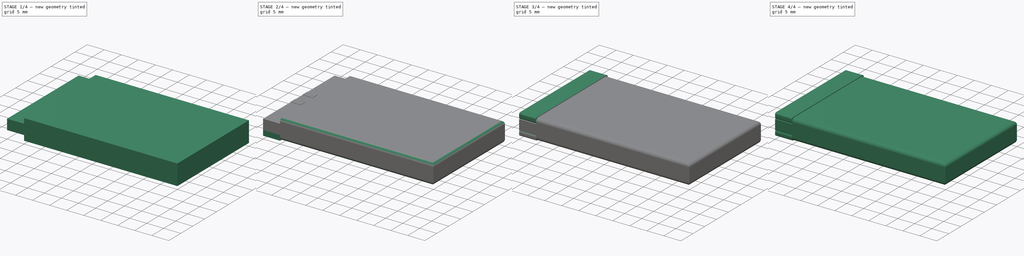
[diagram: build sequence overview — one tinted view per stage of 4, left to right]
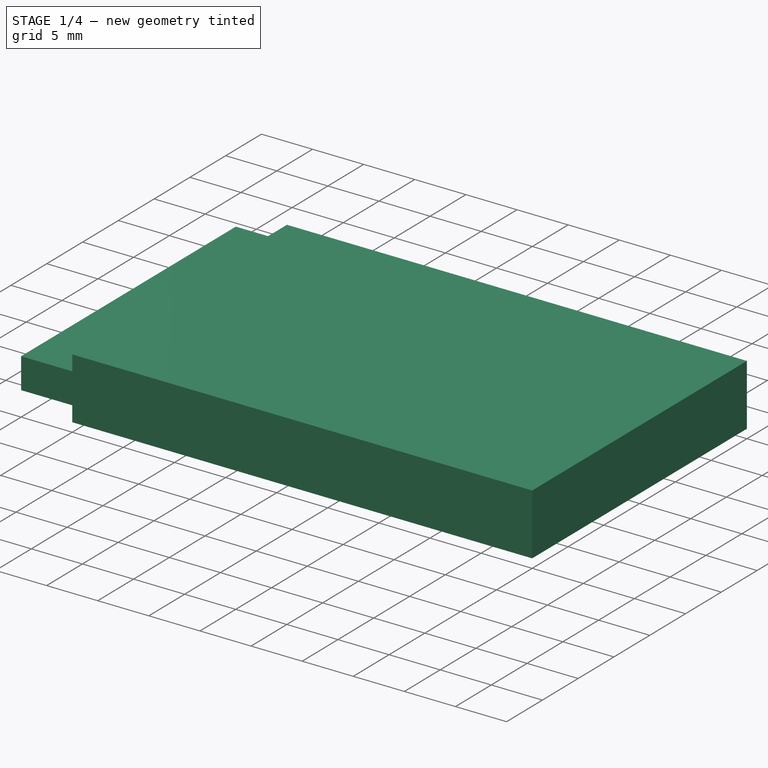
[diagram: stage 1 of 4 — iso view after this stage's code; geometry added in this stage tinted green]
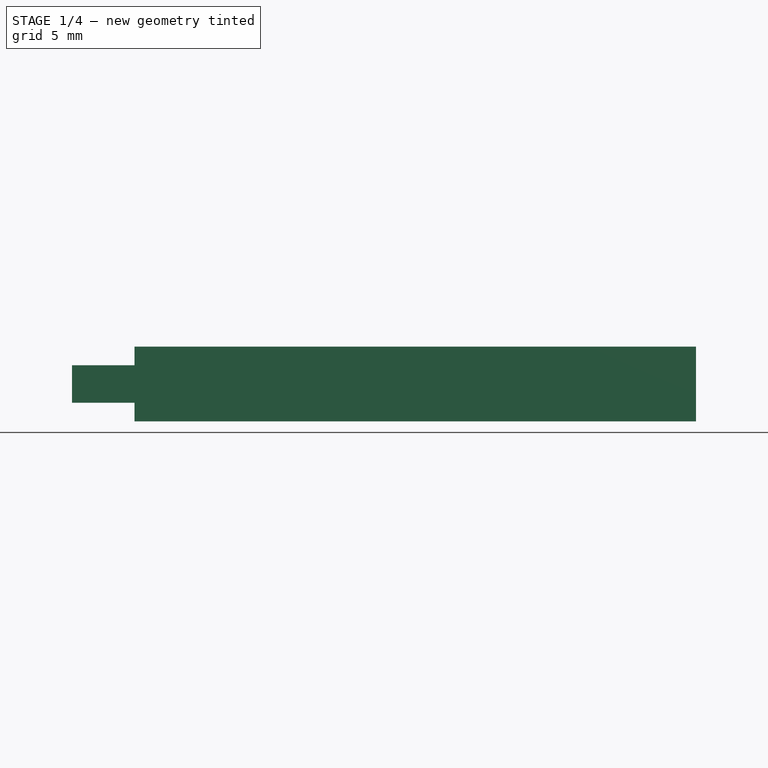
[diagram: stage 1 of 4 — front view after this stage's code; geometry added in this stage tinted green]
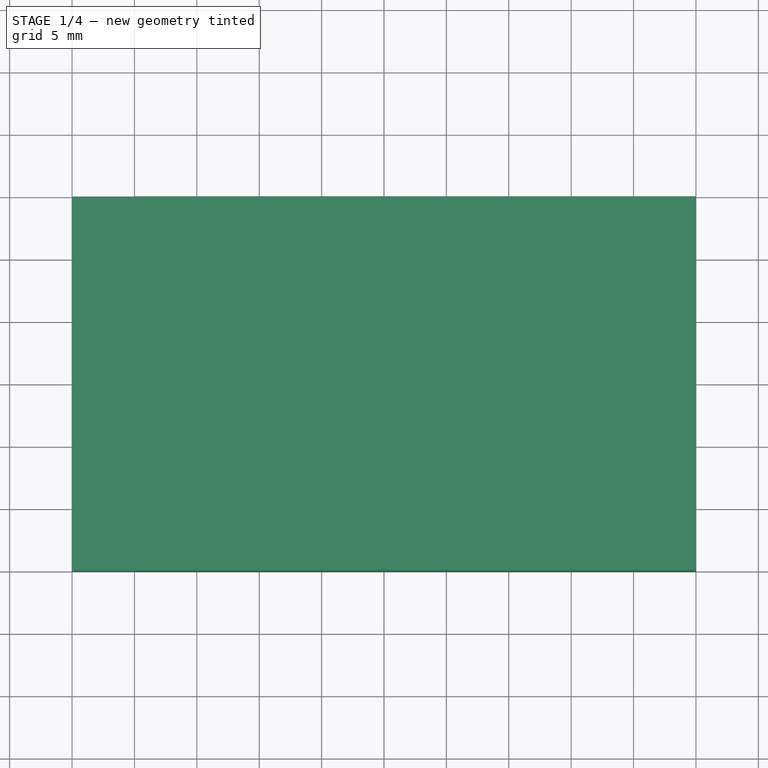
[diagram: stage 1 of 4 — top view after this stage's code; geometry added in this stage tinted green]
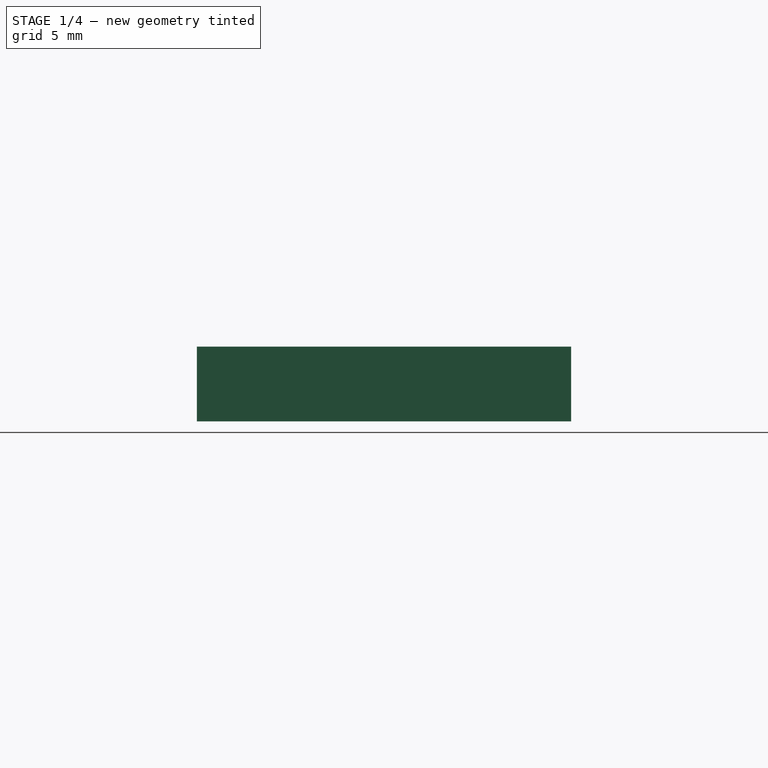
[diagram: stage 1 of 4 — right view after this stage's code; geometry added in this stage tinted green]
FCSTD DOCUMENT  (FreeCAD 0.16R6710 (Git))
Label: battery_lipo_3_7v_240mah
License: All rights reserved
LicenseURL: http://en.wikipedia.org/wiki/All_rights_reserved
objects: Sketcher::SketchObject×8, Part::FeaturePython×5, PartDesign::Pad×4, PartDesign::Fillet×3, PartDesign::Pocket×2, Part::Sweep×2, Part::Part2DObjectPython×2, App::DocumentObjectGroup×2
note: 32 computed .brp shape members not serialized (recipe doc carries the construction recipe); baked Part::Feature solids carry a one-line shape summary decoded from their .brp

FEATURE [Sketcher::SketchObject] Sketch  label="base"
  sketch-geometry (4):
    g0: LineSegment StartX=0 StartY=0 StartZ=0 EndX=50 EndY=0 EndZ=0
    g1: LineSegment StartX=50 StartY=0 StartZ=0 EndX=50 EndY=30 EndZ=0
    g2: LineSegment StartX=50 StartY=30 StartZ=0 EndX=0 EndY=30 EndZ=0
    g3: LineSegment StartX=0 StartY=30 StartZ=0 EndX=0 EndY=0 EndZ=0
  constraints (11):
    c: Coincident(g0,g1)
    c: Coincident(g1,g2)
    c: Coincident(g2,g3)
    c: Coincident(g3,g0)
    c: Horizontal(g0)
    c: Horizontal(g2)
    c: Vertical(g1)
    c: Vertical(g3)
    c: Coincident(g0,g-1)
    c: DistanceY(g1,g1) = 30
    c: DistanceX(g2,g2) = 50
FEATURE [PartDesign::Pad] Pad  label="battery_base"
  Length = 6
  Length2 = 100
  Sketch = -> Sketch
  Type = 0
FEATURE [Sketcher::SketchObject] Sketch001  label="upper_step"
  ExternalGeometry = -> [Pad]
  Placement = pos=(0,0,6) rot=(0,0,1;0rad)
  Support = -> Pad [Face6]
  sketch-geometry (4):
    g0: LineSegment StartX=0 StartY=0 StartZ=0 EndX=5 EndY=0 EndZ=0
    g1: LineSegment StartX=5 StartY=0 StartZ=0 EndX=5 EndY=30 EndZ=0
    g2: LineSegment StartX=5 StartY=30 StartZ=0 EndX=0 EndY=30 EndZ=0
    g3: LineSegment StartX=0 StartY=30 StartZ=0 EndX=0 EndY=0 EndZ=0
  constraints (11):
    c: Coincident(g0,g1)
    c: Coincident(g1,g2)
    c: Coincident(g2,g3)
    c: Coincident(g3,g0)
    c: Horizontal(g0)
    c: Horizontal(g2)
    c: Vertical(g1)
    c: Vertical(g3)
    c: Coincident(g0,g-1)
    c: DistanceX(g2,g2) = 5
    c: Equal(g3,g-3)
FEATURE [PartDesign::Pocket] Pocket  label="battery_upper_step"
  Length = 1.5
  Sketch = -> Sketch001
  Type = 0
FEATURE [Sketcher::SketchObject] Sketch002  label="back_step"
  ExternalGeometry = -> [Pad]
  Placement = pos=(0,0,0) rot=(1,0,0;3.14159rad)
  Support = -> Pocket [Face2]
  sketch-geometry (4):
    g0: LineSegment StartX=0 StartY=0 StartZ=0 EndX=5 EndY=0 EndZ=0
    g1: LineSegment StartX=5 StartY=0 StartZ=0 EndX=5 EndY=-30 EndZ=0
    g2: LineSegment StartX=5 StartY=-30 StartZ=0 EndX=0 EndY=-30 EndZ=0
    g3: LineSegment StartX=0 StartY=-30 StartZ=0 EndX=0 EndY=0 EndZ=0
  constraints (11):
    c: Coincident(g0,g1)
    c: Coincident(g1,g2)
    c: Coincident(g2,g3)
    c: Coincident(g3,g0)
    c: Horizontal(g0)
    c: Horizontal(g2)
    c: Vertical(g1)
    c: Vertical(g3)
    c: Coincident(g0,g-1)
    c: DistanceX(g0,g0) = 5
    c: Equal(g3,g-3)
FEATURE [PartDesign::Pocket] Pocket001  label="battery_back_step"
  Length = 1.5
  Sketch = -> Sketch002
  Type = 0
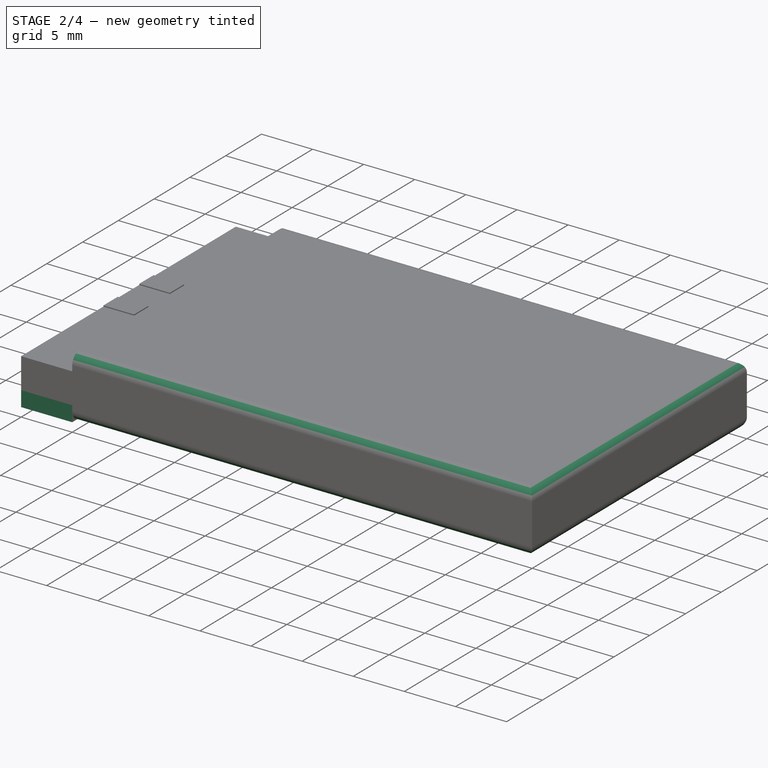
[diagram: stage 2 of 4 — iso view after this stage's code; geometry added in this stage tinted green]
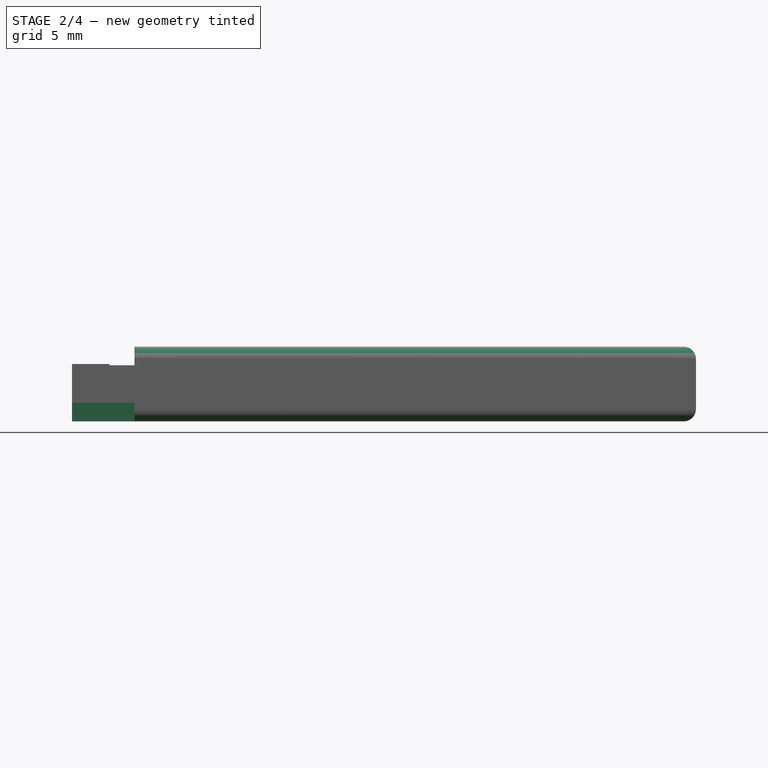
[diagram: stage 2 of 4 — front view after this stage's code; geometry added in this stage tinted green]
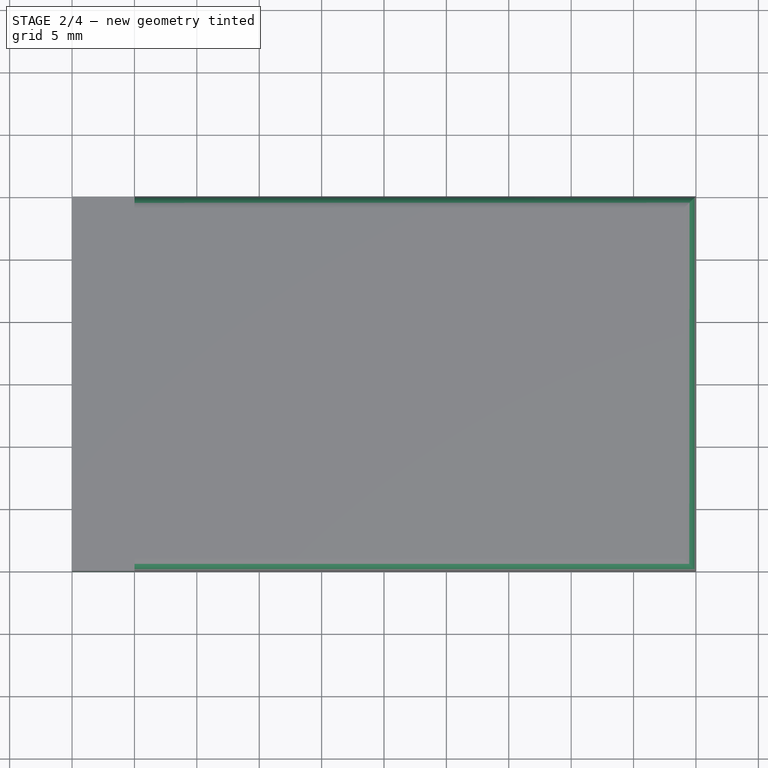
[diagram: stage 2 of 4 — top view after this stage's code; geometry added in this stage tinted green]
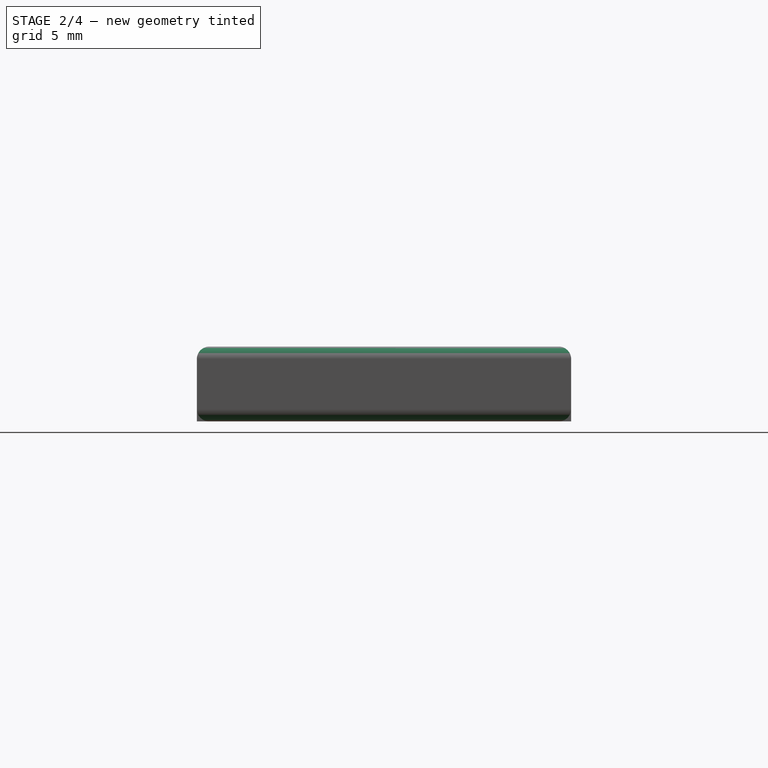
[diagram: stage 2 of 4 — right view after this stage's code; geometry added in this stage tinted green]
FEATURE [Sketcher::SketchObject] Sketch003  label="contacts"
  Placement = pos=(0,0,4.5) rot=(0,0,1;0rad)
  Support = -> Pocket001 [Face6]
  sketch-geometry (8):
    g0: LineSegment StartX=0 StartY=18.5 StartZ=0 EndX=3 EndY=18.5 EndZ=0
    g1: LineSegment StartX=3 StartY=18.5 StartZ=0 EndX=3 EndY=16.5 EndZ=0
    g2: LineSegment StartX=3 StartY=16.5 StartZ=0 EndX=0 EndY=16.5 EndZ=0
    g3: LineSegment StartX=0 StartY=16.5 StartZ=0 EndX=0 EndY=18.5 EndZ=0
    g4: LineSegment StartX=0 StartY=13.5 StartZ=0 EndX=3 EndY=13.5 EndZ=0
    g5: LineSegment StartX=3 StartY=13.5 StartZ=0 EndX=3 EndY=11.5 EndZ=0
    g6: LineSegment StartX=3 StartY=11.5 StartZ=0 EndX=0 EndY=11.5 EndZ=0
    g7: LineSegment StartX=0 StartY=11.5 StartZ=0 EndX=0 EndY=13.5 EndZ=0
  constraints (24):
    c: Coincident(g0,g1)
    c: Coincident(g1,g2)
    c: Coincident(g2,g3)
    c: Coincident(g3,g0)
    c: Horizontal(g0)
    c: Horizontal(g2)
    c: Vertical(g1)
    c: Vertical(g3)
    c: DistanceY(g3,g3) = 2
    c: DistanceX(g0,g0) = 3
    c: PointOnObject(g0,g-2)
    c: Coincident(g4,g5)
    c: Coincident(g5,g6)
    c: Coincident(g6,g7)
    c: Coincident(g7,g4)
    c: Horizontal(g4)
    c: Horizontal(g6)
    c: Vertical(g5)
    c: Vertical(g7)
    c: Equal(g3,g7) = 2
    c: Equal(g0,g4) = 3
    c: DistanceY(g4,g2) = 3
    c: PointOnObject(g4,g-2)
    c: DistanceY(g-1,g6) = 11.5
FEATURE [PartDesign::Pad] Pad001  label="battery_with_contacts"
  Length = 0.1
  Length2 = 100
  Sketch = -> Sketch003
  Type = 0
FEATURE [Sketcher::SketchObject] Sketch007  label="celofan002"
  sketch-geometry (4):
    g0: LineSegment StartX=0 StartY=30 StartZ=0 EndX=5 EndY=30 EndZ=0
    g1: LineSegment StartX=5 StartY=30 StartZ=0 EndX=5 EndY=0 EndZ=0
    g2: LineSegment StartX=5 StartY=0 StartZ=0 EndX=0 EndY=0 EndZ=0
    g3: LineSegment StartX=0 StartY=0 StartZ=0 EndX=0 EndY=30 EndZ=0
  constraints (9):
    c: Coincident(g0,g1)
    c: Coincident(g1,g2)
    c: Coincident(g2,g3)
    c: Coincident(g3,g0)
    c: Horizontal(g0)
    c: Horizontal(g2)
    c: Vertical(g1)
    c: Vertical(g3)
    c: PointOnObject(g1,g-1)
FEATURE [PartDesign::Pad] Pad003  label="celofan003"
  Length = 1.5
  Length2 = 100
  Sketch = -> Sketch007
  Type = 0
FEATURE [PartDesign::Fillet] Fillet002  label="battery_rounded"
  Base = -> Pad001 [Edge1,Edge3,Edge14,Edge10,Edge13,Edge9]
  Radius = 1
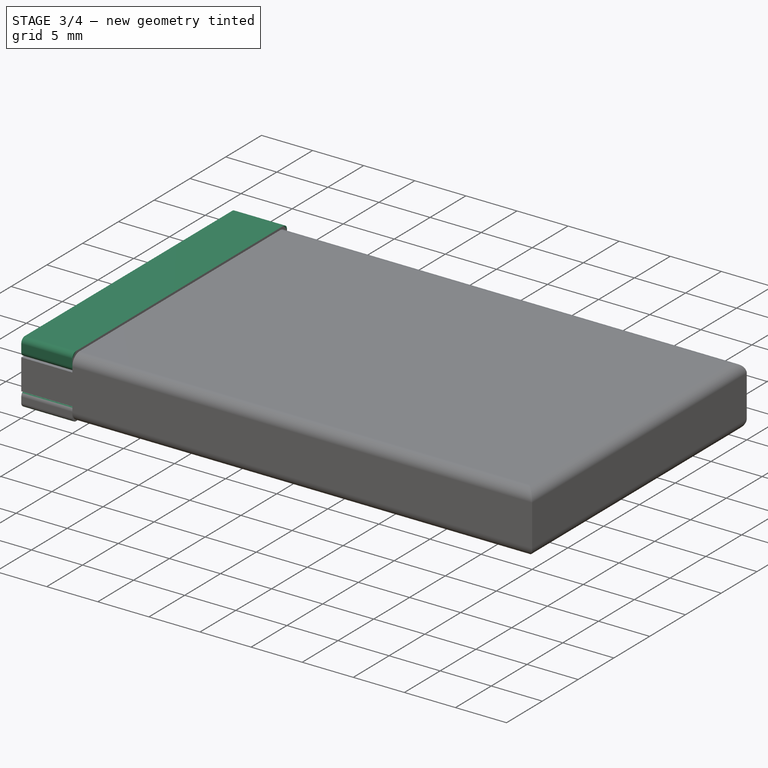
[diagram: stage 3 of 4 — iso view after this stage's code; geometry added in this stage tinted green]
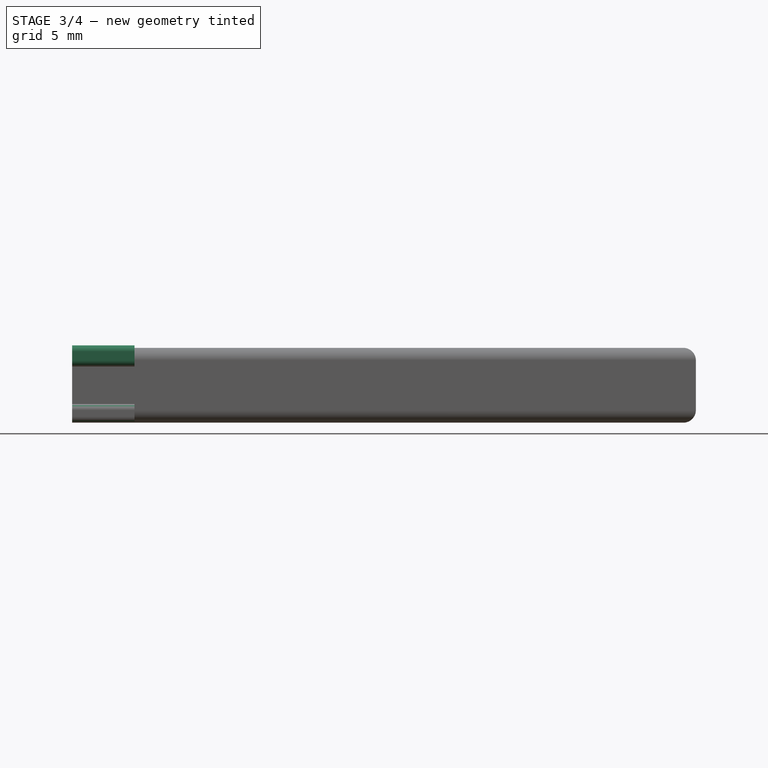
[diagram: stage 3 of 4 — front view after this stage's code; geometry added in this stage tinted green]
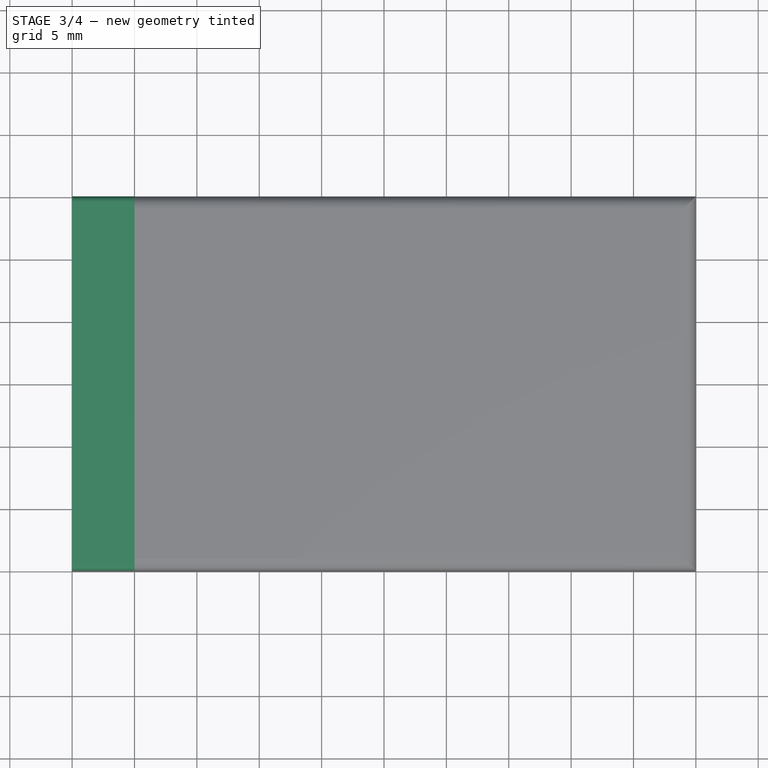
[diagram: stage 3 of 4 — top view after this stage's code; geometry added in this stage tinted green]
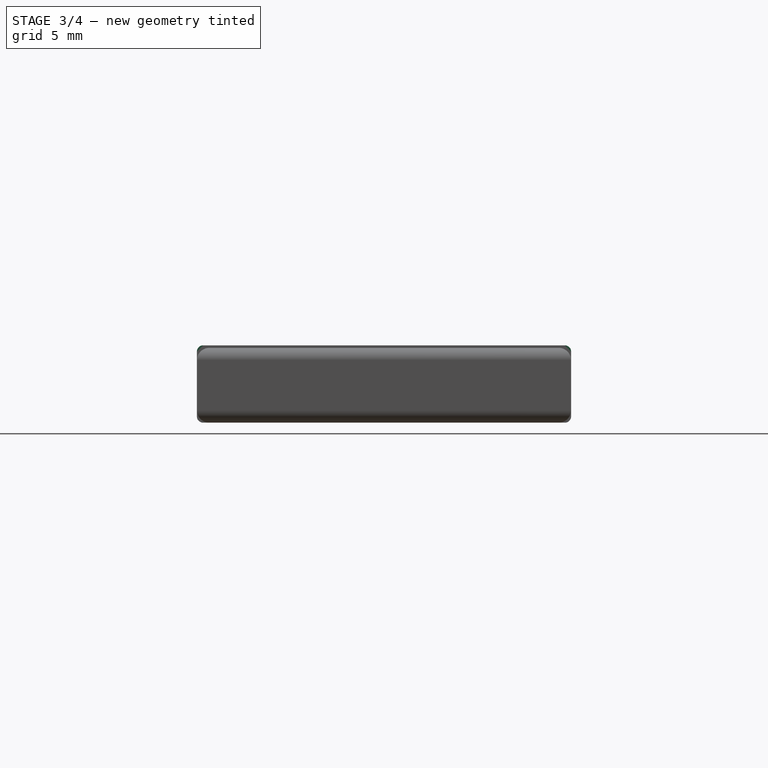
[diagram: stage 3 of 4 — right view after this stage's code; geometry added in this stage tinted green]
FEATURE [Sketcher::SketchObject] Sketch004  label="wire_plus"
  Placement = pos=(0,0,0) rot=(0.57735,0.57735,0.57735;2.0944rad)
  sketch-geometry (1):
    g0: Circle CenterX=0 CenterY=0 CenterZ=0 NormalX=0 NormalY=0 NormalZ=1 Radius=0.5
  constraints (2):
    c: Radius(g0) = 0.5
    c: Coincident(g0,g-1)
FEATURE [Sketcher::SketchObject] Sketch005  label="wire_trejectory"
  Placement = pos=(0,0,0) rot=(-1,0,0;4.71239rad)
  sketch-geometry (2):
    g0: LineSegment StartX=0 StartY=0 StartZ=0 EndX=9.43296 EndY=0 EndZ=0
    g1: ArcOfCircle CenterX=9.43296 CenterY=-0.567037 CenterZ=0 NormalX=0 NormalY=0 NormalZ=1 Radius=0.567037 StartAngle=0 EndAngle=1.5708
  constraints (2):
    c: Coincident(g0,g-1)
    c: Tangent(g0,g1) = 1.5708
FEATURE [Part::Sweep] Sweep  label="plus_wire"
  Frenet = false
  Placement = pos=(-8,17.5,5.1) rot=(0,0,1;0rad)
  Sections = -> [Sketch004]
  Solid = false
  Spine = -> Sketch005 [Edge1,Edge2]
  Transition = 1
FEATURE [Part::Sweep] Sweep001  label="minus_wire"
  Frenet = false
  Placement = pos=(-8,12.5,5.1) rot=(0,0,1;0rad)
  Sections = -> [Sketch004]
  Solid = false
  Spine = -> Sketch005 [Edge1,Edge2]
  Transition = 1
FEATURE [Sketcher::SketchObject] Sketch006  label="celofan"
  Placement = pos=(0,0,4.5) rot=(0,0,1;0rad)
  sketch-geometry (4):
    g0: LineSegment StartX=0 StartY=30 StartZ=0 EndX=5 EndY=30 EndZ=0
    g1: LineSegment StartX=5 StartY=30 StartZ=0 EndX=5 EndY=0 EndZ=0
    g2: LineSegment StartX=5 StartY=0 StartZ=0 EndX=0 EndY=0 EndZ=0
    g3: LineSegment StartX=0 StartY=0 StartZ=0 EndX=0 EndY=30 EndZ=0
  constraints (9):
    c: Coincident(g0,g1)
    c: Coincident(g1,g2)
    c: Coincident(g2,g3)
    c: Coincident(g3,g0)
    c: Horizontal(g0)
    c: Horizontal(g2)
    c: Vertical(g1)
    c: Vertical(g3)
    c: PointOnObject(g1,g-1)
FEATURE [PartDesign::Pad] Pad002  label="celofan001"
  Length = 1.7
  Length2 = 100
  Placement = pos=(0,0,4.5) rot=(0,0,1;0rad)
  Sketch = -> Sketch006
  Type = 0
FEATURE [PartDesign::Fillet] Fillet  label="celofan_rounded"
  Base = -> Pad002 [Edge10,Edge9,Edge4,Edge3]
  Placement = pos=(0,0,4.5) rot=(0,0,1;0rad)
  Radius = 0.5
FEATURE [PartDesign::Fillet] Fillet001  label="celonfan_rounded_2"
  Base = -> Pad003 [Edge10,Edge9,Edge4,Edge3]
  Radius = 0.5
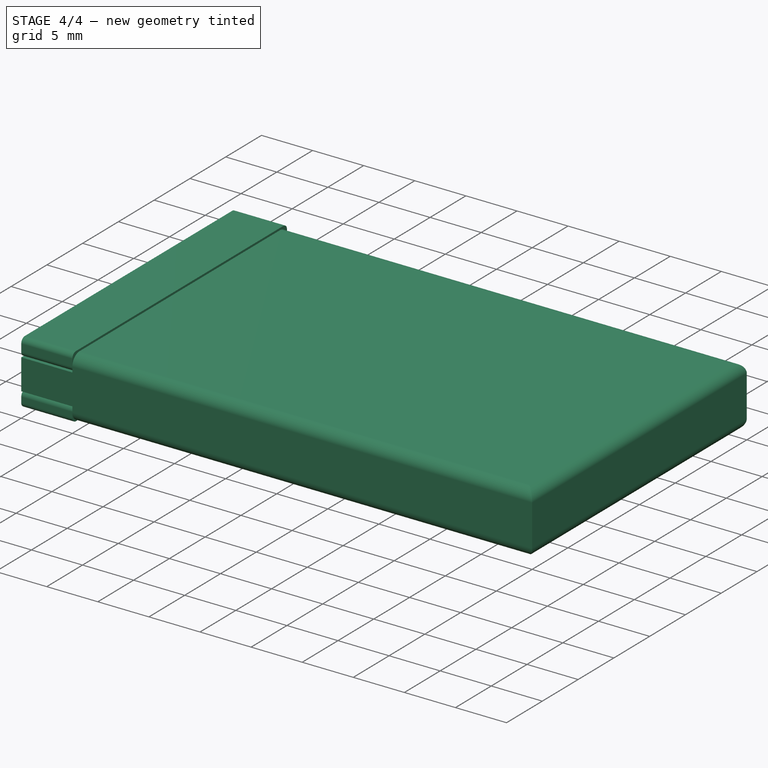
[diagram: stage 4 of 4 — iso view after this stage's code; geometry added in this stage tinted green]
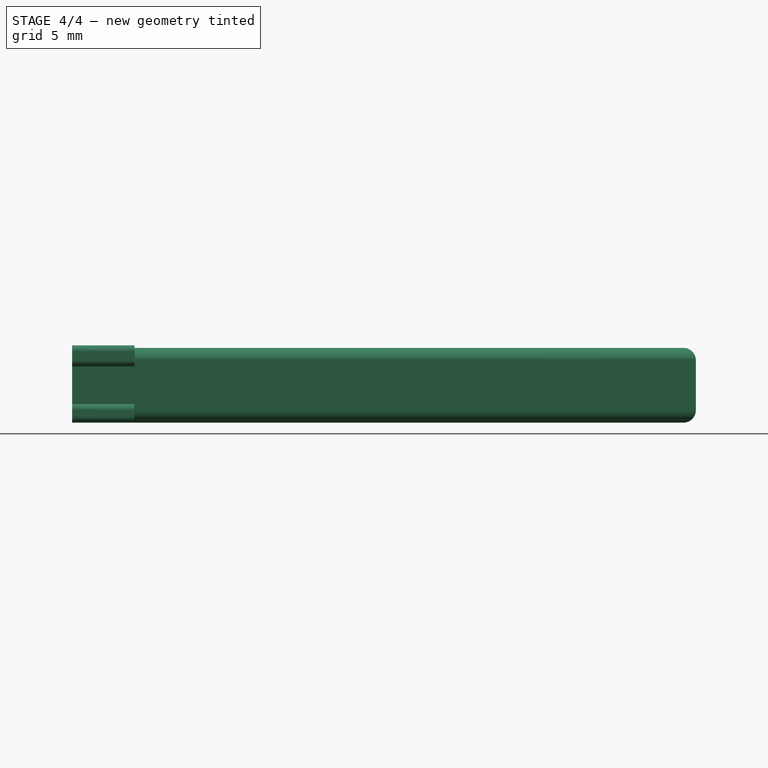
[diagram: stage 4 of 4 — front view after this stage's code; geometry added in this stage tinted green]
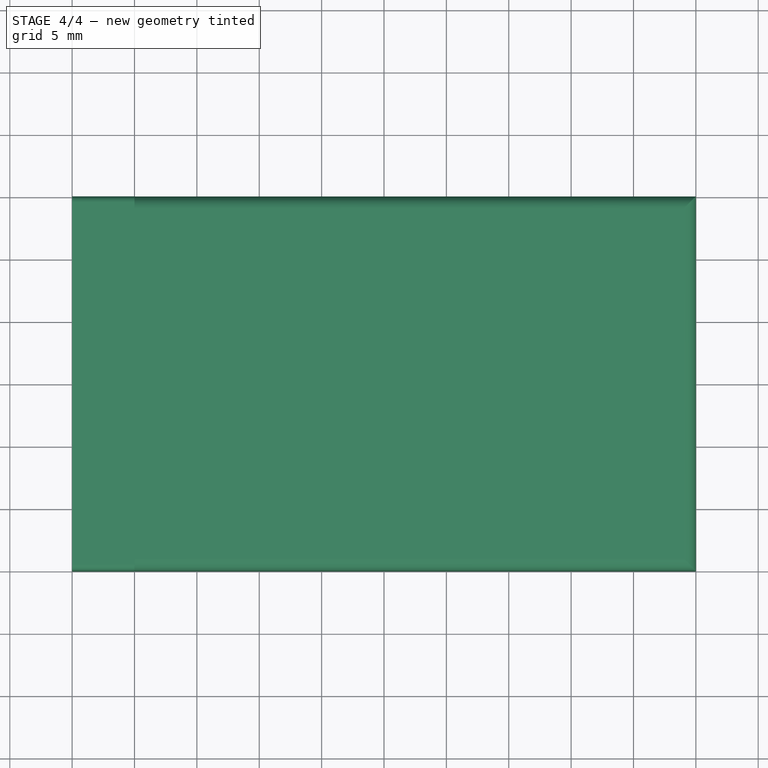
[diagram: stage 4 of 4 — top view after this stage's code; geometry added in this stage tinted green]
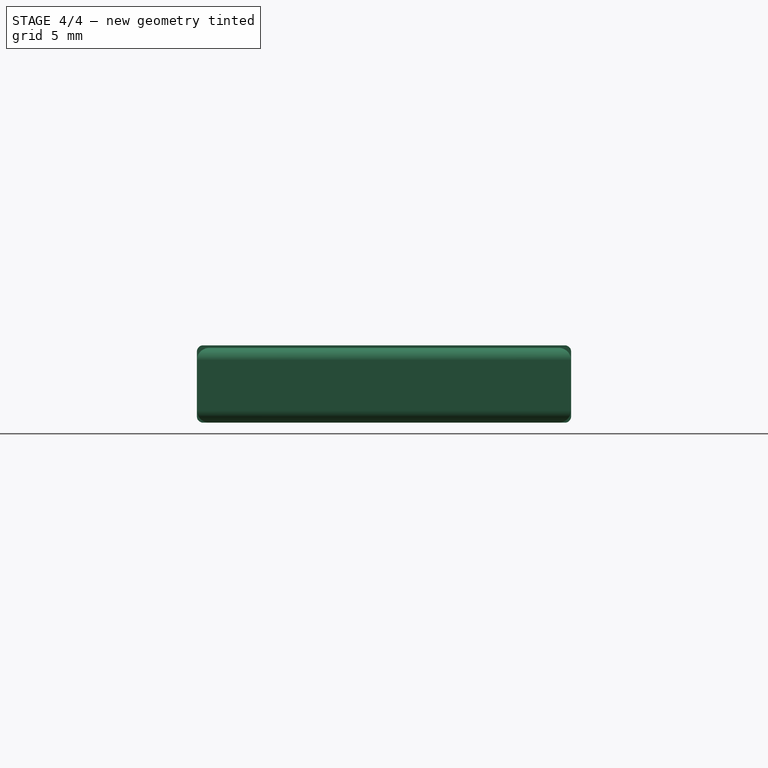
[diagram: stage 4 of 4 — right view after this stage's code; geometry added in this stage tinted green]
FEATURE [Part::Part2DObjectPython] ShapeString  label="data_text"  # Draft 2D object (typed FeaturePython)
  FontFile = <path>
  Placement = pos=(25.4561,22.613,6) rot=(0,0,1;0rad)
  Size = 2
  String = 3.7 V       240 mAh
  Tracking = 0
FEATURE [Part::FeaturePython] Clone  label="Clone of plus_wire"  # Draft clone (typed FeaturePython)
  Objects = -> [Sweep]
  Placement = pos=(-8,17.5,5.1) rot=(0,0,1;0rad)
  Scale = (1,1,1)
FEATURE [Part::FeaturePython] Clone001  label="Clone of minus_wire"  # Draft clone (typed FeaturePython)
  Objects = -> [Sweep001]
  Placement = pos=(-8,12.5,5.1) rot=(0,0,1;0rad)
  Scale = (1,1,1)
FEATURE [Part::FeaturePython] Clone002  label="Clone of celonfan_rounded_2"  # Draft clone (typed FeaturePython)
  Objects = -> [Fillet001]
  Scale = (1,1,1)
FEATURE [Part::Part2DObjectPython] Clone2D  label="Clone of data_text (2D)"  # Draft 2D object (typed FeaturePython)
  Objects = -> [ShapeString]
  Placement = pos=(25.4561,22.613,6) rot=(0,0,1;0rad)
  Scale = (1,1,1)
FEATURE [Part::FeaturePython] Clone003  label="Clone of battery_rounded"  # Draft clone (typed FeaturePython)
  Objects = -> [Fillet002]
  Scale = (1,1,1)
FEATURE [Part::FeaturePython] Clone004  label="Clone of celofan_rounded"  # Draft clone (typed FeaturePython)
  Objects = -> [Fillet]
  Placement = pos=(0,0,4.5) rot=(0,0,1;0rad)
  Scale = (1,1,1)
FEATURE [App::DocumentObjectGroup] Grupo  label="battery_3_7_V_240mah"
  Group = -> [Clone,Clone001,Clone002,Clone2D,Clone003,Clone004]
FEATURE [App::DocumentObjectGroup] Grupo001  label="sources"
  Group = -> [Pad,Pocket,Pocket001,Pad001,Sketch005,Pad002,Pad003,Sweep,Sweep001,Fillet,Fillet001,Fillet002,ShapeString]
note: 1 file-system path scrubbed to <path> (originals preserved in the JSON sidecar)
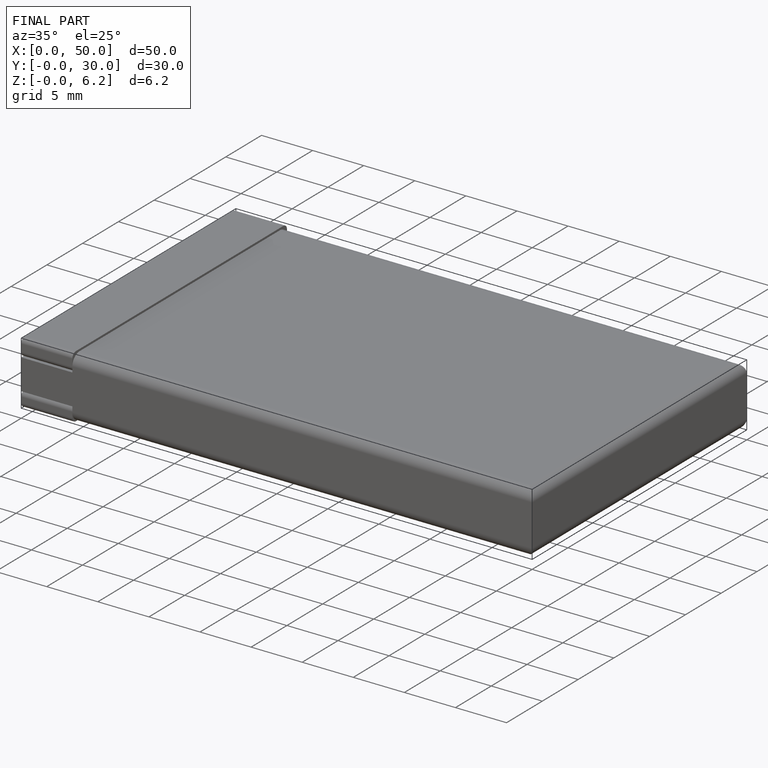
[diagram: finished part — iso view with bounding-box wireframe]
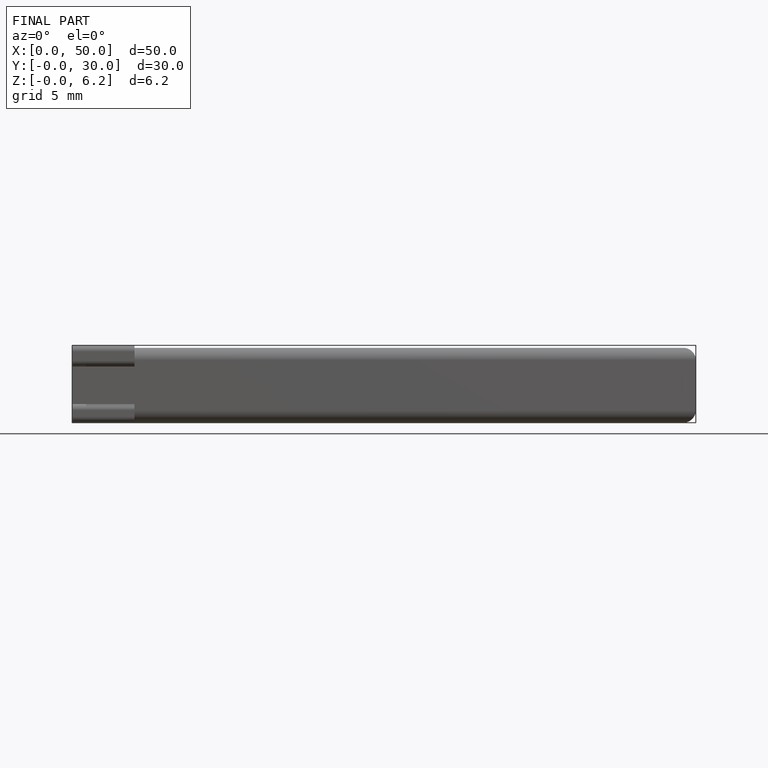
[diagram: finished part — front view with bounding-box wireframe]
